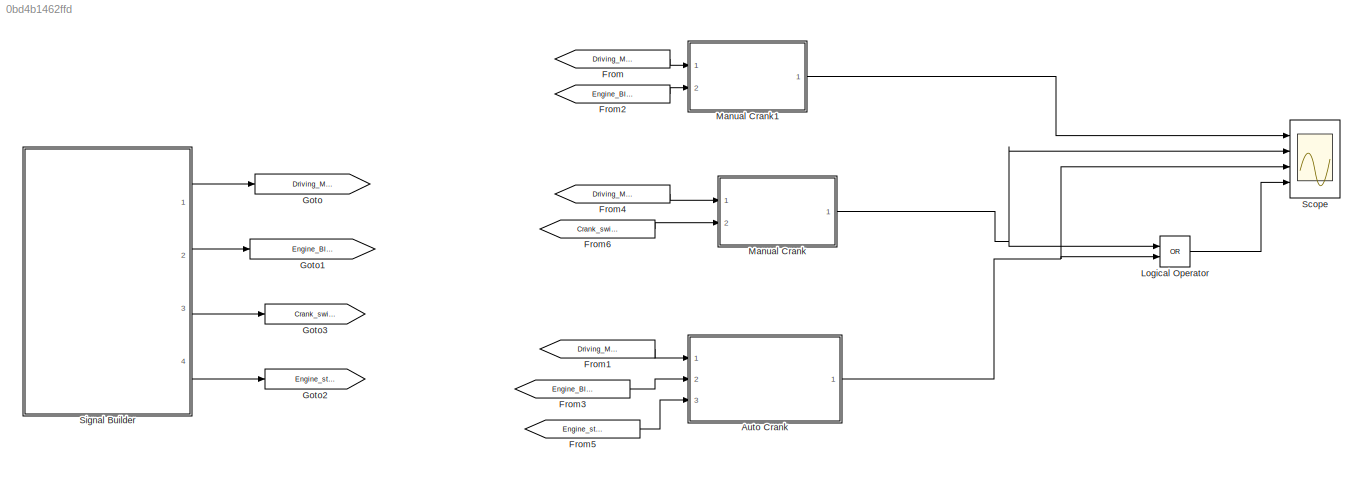
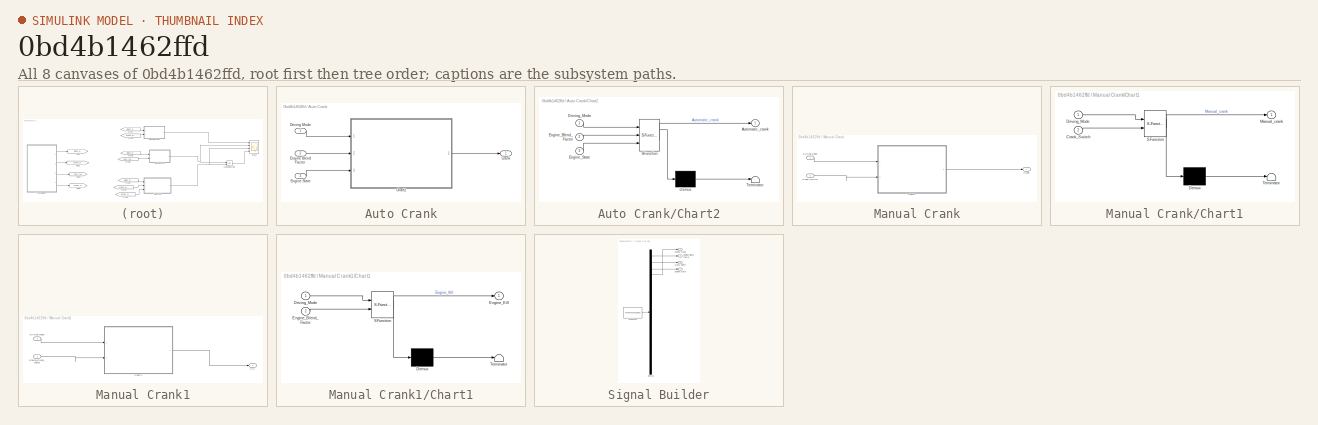
[diagram: thumbnail index - all 8 canvases of the model, root first then tree order]
MODEL slx_0bd4b1462ffd
KIND model
BLOCK [SubSystem] Auto Crank
  Ports = [3, 1]
  RequestExecContextInheritance = off
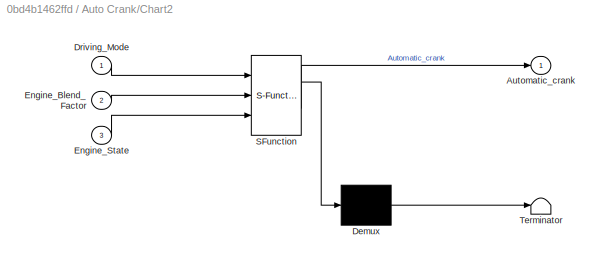
BLOCK [SubSystem] Auto Crank/Chart2
  ErrorFcn = Stateflow.Translate.translate
  PermitHierarchicalResolution = ExplicitOnly
  Ports = [3, 1]
  RequestExecContextInheritance = off
  SFBlockType = Chart
  TreatAsAtomicUnit = on
BLOCK [Demux] Auto Crank/Chart2/ Demux 
  Outputs = 1
  Ports = [1, 1]
BLOCK [S-Function] Auto Crank/Chart2/ SFunction 
  EnableBusSupport = on
  FunctionName = sf_sfun
  PortCounts = [3 2]
  Ports = [3, 2]
  Tag = Stateflow S-Function Engine_start_stop 9
BLOCK [Terminator] Auto Crank/Chart2/ Terminator 
BLOCK [Outport] Auto Crank/Chart2/Automatic_crank
  IconDisplay = Port number
BLOCK [Inport] Auto Crank/Chart2/Driving_Mode
  IconDisplay = Port number
BLOCK [Inport] Auto Crank/Chart2/Engine_Blend_Factor
  IconDisplay = Port number
  Port = 2
BLOCK [Inport] Auto Crank/Chart2/Engine_State
  IconDisplay = Port number
  Port = 3
BLOCK [Outport] Auto Crank/Crank
  IconDisplay = Port number
BLOCK [Inport] Auto Crank/Driving Mode
  IconDisplay = Port number
BLOCK [Inport] Auto Crank/Engine Blend Factor
  IconDisplay = Port number
  Port = 2
BLOCK [Inport] Auto Crank/Engine State
  IconDisplay = Port number
  Port = 3
BLOCK [From] From
  GotoTag = Driving_Mode
BLOCK [From] From1
  GotoTag = Driving_Mode
BLOCK [From] From2
  GotoTag = Engine_Blend_Factor
BLOCK [From] From3
  GotoTag = Engine_Blend_Factor
BLOCK [From] From4
  GotoTag = Driving_Mode
BLOCK [From] From5
  GotoTag = Engine_state
BLOCK [From] From6
  GotoTag = Crank_switch
BLOCK [Goto] Goto
  GotoTag = Driving_Mode
BLOCK [Goto] Goto1
  GotoTag = Engine_Blend_Factor
BLOCK [Goto] Goto2
  GotoTag = Engine_state
BLOCK [Goto] Goto3
  GotoTag = Crank_switch
BLOCK [Logic] Logical Operator
  AllPortsSameDT = off
  Operator = OR
  OutDataTypeStr = boolean
  Ports = [2, 1]
BLOCK [SubSystem] Manual Crank
  Ports = [2, 1]
  RequestExecContextInheritance = off
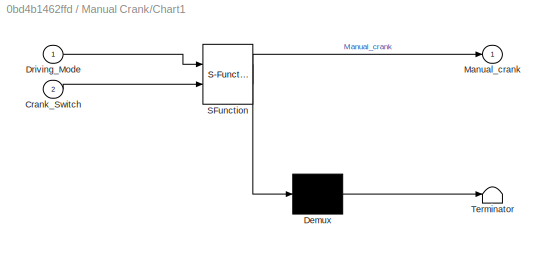
BLOCK [SubSystem] Manual Crank/Chart1
  ErrorFcn = Stateflow.Translate.translate
  PermitHierarchicalResolution = ExplicitOnly
  Ports = [2, 1]
  RequestExecContextInheritance = off
  SFBlockType = Chart
  TreatAsAtomicUnit = on
BLOCK [Demux] Manual Crank/Chart1/ Demux 
  Outputs = 1
  Ports = [1, 1]
BLOCK [S-Function] Manual Crank/Chart1/ SFunction 
  EnableBusSupport = on
  FunctionName = sf_sfun
  PortCounts = [2 2]
  Ports = [2, 2]
  Tag = Stateflow S-Function Engine_start_stop 8
BLOCK [Terminator] Manual Crank/Chart1/ Terminator 
BLOCK [Inport] Manual Crank/Chart1/Crank_Switch
  IconDisplay = Port number
  Port = 2
BLOCK [Inport] Manual Crank/Chart1/Driving_Mode
  IconDisplay = Port number
BLOCK [Outport] Manual Crank/Chart1/Manual_crank
  IconDisplay = Port number
BLOCK [Outport] Manual Crank/Crank
  IconDisplay = Port number
BLOCK [Inport] Manual Crank/Crank Switch
  IconDisplay = Port number
  Port = 2
BLOCK [Inport] Manual Crank/Driving Mode
  IconDisplay = Port number
BLOCK [SubSystem] Manual Crank1
  Ports = [2, 1]
  RequestExecContextInheritance = off
BLOCK [SubSystem] Manual Crank1/Chart1
  ErrorFcn = Stateflow.Translate.translate
  PermitHierarchicalResolution = ExplicitOnly
  Ports = [2, 1]
  RequestExecContextInheritance = off
  SFBlockType = Chart
  TreatAsAtomicUnit = on
BLOCK [Demux] Manual Crank1/Chart1/ Demux 
  Outputs = 1
  Ports = [1, 1]
BLOCK [S-Function] Manual Crank1/Chart1/ SFunction 
  EnableBusSupport = on
  FunctionName = sf_sfun
  PortCounts = [2 2]
  Ports = [2, 2]
  Tag = Stateflow S-Function Engine_start_stop 11
BLOCK [Terminator] Manual Crank1/Chart1/ Terminator 
BLOCK [Inport] Manual Crank1/Chart1/Driving_Mode
  IconDisplay = Port number
BLOCK [Inport] Manual Crank1/Chart1/Engine_Blend_Factor
  IconDisplay = Port number
  Port = 2
BLOCK [Outport] Manual Crank1/Chart1/Engine_Kill
  IconDisplay = Port number
BLOCK [Inport] Manual Crank1/Driving Mode
  IconDisplay = Port number
BLOCK [Inport] Manual Crank1/Engine_Blend_Factor
  IconDisplay = Port number
  Port = 2
BLOCK [Outport] Manual Crank1/Kill
  IconDisplay = Port number
BLOCK [Scope] Scope
  DataFormat = StructureWithTime
  Floating = off
  NumInputPorts = 4
  Ports = [4]
  SampleTime = 0
  ShowLegends = off
  YMax = 5~5~5~5
  YMin = -5~-5~-5~-5
BLOCK [SubSystem] Signal Builder
  ClipboardFcn = sigbuilder_block('clipboard');
  CloseFcn = sigbuilder_block('close');
  ContinueFcn = sigbuilder_block('continue');
  CopyFcn = sigbuilder_block('copy');
  DeleteFcn = sigbuilder_block('delete');
  LoadFcn = sigbuilder_block('load',[68.25 -97.5 747 477.75 ]);
  MaskHideContents = on
  ModelCloseFcn = sigbuilder_block('modelClose');
  NameChangeFcn = sigbuilder_block('namechange');
  OpenFcn = sigbuilder_block('open',[0 -228 1440 695.25 ]);
  PauseFcn = sigbuilder_block('pause');
  Ports = [0, 4]
  PreSaveFcn = sigbuilder_block('preSave');
  RequestExecContextInheritance = off
  StartFcn = sigbuilder_block('start');
  StopFcn = sigbuilder_block('stop');
  Tag = STV Subsys
BLOCK [Outport] Signal Builder/Crank switch
  IconDisplay = Port number
  Port = 3
  Tag = STV Outport
BLOCK [Demux] Signal Builder/Demux
  Ports = [1, 4]
  Tag = STV Demux
BLOCK [Outport] Signal Builder/Driving Mode
  IconDisplay = Port number
  Tag = STV Outport
BLOCK [Outport] Signal Builder/Engine Blend Factor
  IconDisplay = Port number
  Port = 2
  Tag = STV Outport
BLOCK [Outport] Signal Builder/Engine State
  IconDisplay = Port number
  Port = 4
  Tag = STV Outport
BLOCK [FromWorkspace] Signal Builder/FromWs
  SampleTime = 0
  Tag = STV FromWs
  VariableName = tuvar
  ZeroCross = on
LINE Auto Crank/Chart2:1 -> Auto Crank/Crank:1
LINE Auto Crank/Driving Mode:1 -> Auto Crank/Chart2:1
LINE Auto Crank/Engine Blend Factor:1 -> Auto Crank/Chart2:2
LINE Auto Crank/Engine State:1 -> Auto Crank/Chart2:3
NET Auto Crank:1 -> Logical Operator:2, Scope:3
LINE From1:1 -> Auto Crank:1
LINE From2:1 -> Manual Crank1:2
LINE From3:1 -> Auto Crank:2
LINE From4:1 -> Manual Crank:1
LINE From5:1 -> Auto Crank:3
LINE From6:1 -> Manual Crank:2
LINE From:1 -> Manual Crank1:1
LINE Logical Operator:1 -> Scope:4
LINE Manual Crank/Chart1:1 -> Manual Crank/Crank:1
LINE Manual Crank/Crank Switch:1 -> Manual Crank/Chart1:2
LINE Manual Crank/Driving Mode:1 -> Manual Crank/Chart1:1
LINE Manual Crank1/Chart1:1 -> Manual Crank1/Kill:1
LINE Manual Crank1/Driving Mode:1 -> Manual Crank1/Chart1:1
LINE Manual Crank1/Engine_Blend_Factor:1 -> Manual Crank1/Chart1:2
LINE Manual Crank1:1 -> Scope:1
NET Manual Crank:1 -> Logical Operator:1, Scope:2
LINE Signal Builder:1 -> Goto:1
LINE Signal Builder:2 -> Goto1:1
LINE Signal Builder:3 -> Goto3:1
LINE Signal Builder:4 -> Goto2:1
note: NET lines group one-source signal fan-out (src -> all destinations, sorted); 1:1 wires keep LINE
